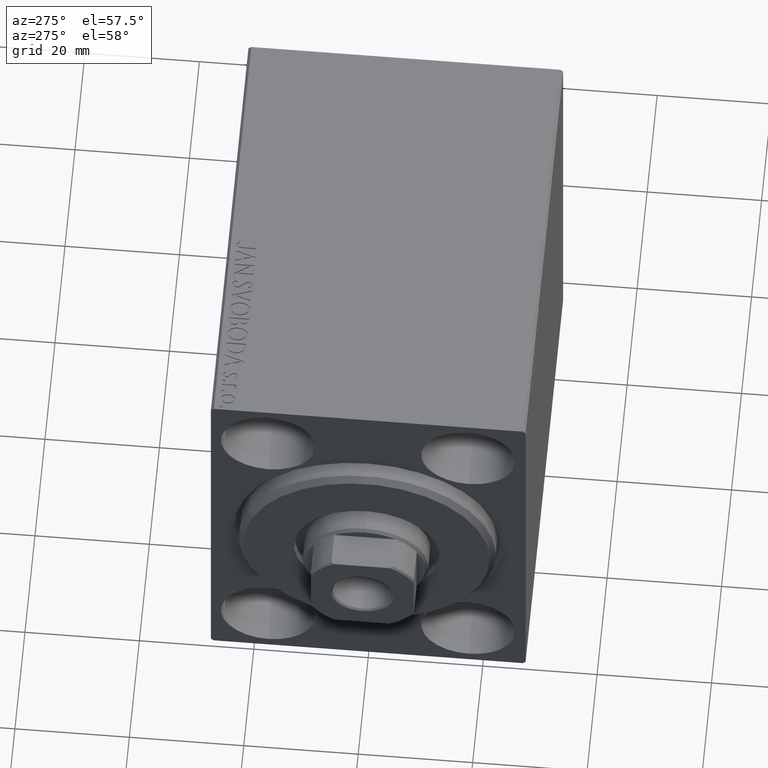
[diagram: clean part render]
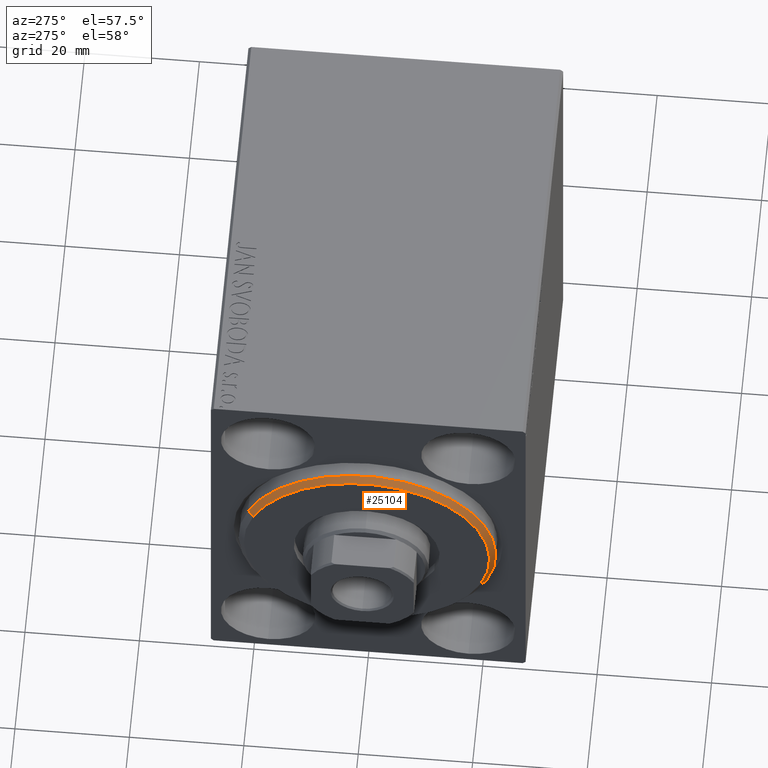
[diagram: same view with one face highlighted and labeled with its STEP entity id]
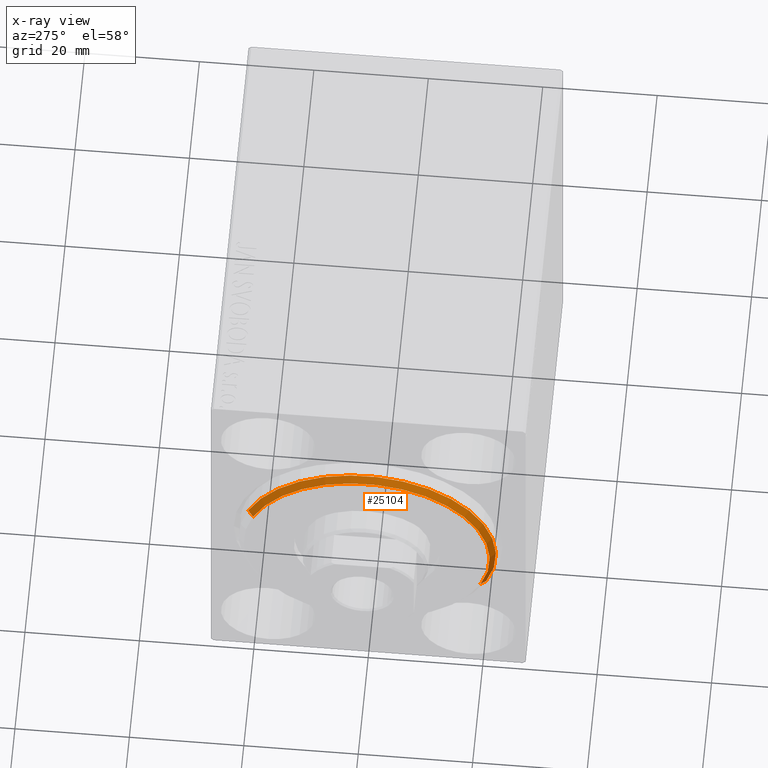
[diagram: x-ray of the same camera — body ghosted, the highlighted face saturated]
A machine part, auxiliary view. The second image highlights one B-rep face of the part: STEP entity #25104.
The next image is the same camera in x-ray: the body ghosted, the highlighted face saturated — about 0% of this face is hidden behind the body in this view.
In plain terms, the highlighted conical surface has half-angle 45 deg.
Its self-contained STEP definition (entity closure, byte-faithful):
#985 = DIRECTION ( 'NONE',  ( 0.000000000000000000, 0.000000000000000000, 1.000000000000000000 ) ) ;
#7380 = CONICAL_SURFACE ( 'NONE', #30120, 21.50000000000000355, 0.7853981633974466137 ) ;
#8777 = AXIS2_PLACEMENT_3D ( 'NONE', #19079, #39765, #25539 ) ;
#10404 = CARTESIAN_POINT ( 'NONE',  ( 1.999999999999999112, 2.755455298081545172E-15, -22.50000000000000355 ) ) ;
#10427 = CIRCLE ( 'NONE', #35274, 22.50000000000000355 ) ;
#11574 = ORIENTED_EDGE ( 'NONE', *, *, #36969, .F. ) ;
#11834 = CARTESIAN_POINT ( 'NONE',  ( 3.000000000000000000, 0.000000000000000000, 21.50000000000000355 ) ) ;
#12084 = DIRECTION ( 'NONE',  ( 0.000000000000000000, 0.000000000000000000, -1.000000000000000000 ) ) ;
#15430 = CARTESIAN_POINT ( 'NONE',  ( 1.999999999999999112, 0.000000000000000000, 22.50000000000000355 ) ) ;
#17894 = DIRECTION ( 'NONE',  ( -1.000000000000000000, 0.000000000000000000, 0.000000000000000000 ) ) ;
#18704 = CIRCLE ( 'NONE', #8777, 21.50000000000000355 ) ;
#19079 = CARTESIAN_POINT ( 'NONE',  ( 3.000000000000000000, 0.000000000000000000, 0.000000000000000000 ) ) ;
#19466 = EDGE_CURVE ( 'NONE', #20493, #31647, #33605, .T. ) ;
#20493 = VERTEX_POINT ( 'NONE', #42735 ) ;
#21219 = CARTESIAN_POINT ( 'NONE',  ( 3.000000000000000000, 0.000000000000000000, 0.000000000000000000 ) ) ;
#22510 = VERTEX_POINT ( 'NONE', #35630 ) ;
#23898 = EDGE_CURVE ( 'NONE', #22510, #20493, #18704, .T. ) ;
#24781 = FACE_OUTER_BOUND ( 'NONE', #32121, .T. ) ;
#25104 = ADVANCED_FACE ( 'NONE', ( #24781 ), #7380, .T. ) ;
#25539 = DIRECTION ( 'NONE',  ( 0.000000000000000000, 0.000000000000000000, -1.000000000000000000 ) ) ;
#28064 = EDGE_CURVE ( 'NONE', #22510, #29064, #32059, .T. ) ;
#28973 = CARTESIAN_POINT ( 'NONE',  ( 1.999999999999999112, 0.000000000000000000, 0.000000000000000000 ) ) ;
#29064 = VERTEX_POINT ( 'NONE', #15430 ) ;
#30120 = AXIS2_PLACEMENT_3D ( 'NONE', #21219, #17894, #985 ) ;
#30701 = DIRECTION ( 'NONE',  ( -0.7071067811865487940, 8.659560562354919300E-17, -0.7071067811865463515 ) ) ;
#31647 = VERTEX_POINT ( 'NONE', #10404 ) ;
#32059 = LINE ( 'NONE', #11834, #34493 ) ;
#32106 = VECTOR ( 'NONE', #30701, 1000.000000000000000 ) ;
#32121 = EDGE_LOOP ( 'NONE', ( #37680, #37185, #42357, #11574 ) ) ;
#33383 = CARTESIAN_POINT ( 'NONE',  ( 3.000000000000000000, 2.632990618166810024E-15, -21.50000000000000355 ) ) ;
#33605 = LINE ( 'NONE', #33383, #32106 ) ;
#34493 = VECTOR ( 'NONE', #35841, 1000.000000000000000 ) ;
#35274 = AXIS2_PLACEMENT_3D ( 'NONE', #28973, #39204, #12084 ) ;
#35630 = CARTESIAN_POINT ( 'NONE',  ( 3.000000000000000000, 0.000000000000000000, 21.50000000000000355 ) ) ;
#35841 = DIRECTION ( 'NONE',  ( -0.7071067811865487940, 0.000000000000000000, 0.7071067811865463515 ) ) ;
#36969 = EDGE_CURVE ( 'NONE', #31647, #29064, #10427, .T. ) ;
#37185 = ORIENTED_EDGE ( 'NONE', *, *, #23898, .F. ) ;
#37680 = ORIENTED_EDGE ( 'NONE', *, *, #19466, .F. ) ;
#39204 = DIRECTION ( 'NONE',  ( -1.000000000000000000, 0.000000000000000000, 0.000000000000000000 ) ) ;
#39765 = DIRECTION ( 'NONE',  ( 1.000000000000000000, -0.000000000000000000, 0.000000000000000000 ) ) ;
#42357 = ORIENTED_EDGE ( 'NONE', *, *, #28064, .T. ) ;
#42735 = CARTESIAN_POINT ( 'NONE',  ( 3.000000000000000000, 2.694222958124177598E-15, -21.50000000000000355 ) ) ;